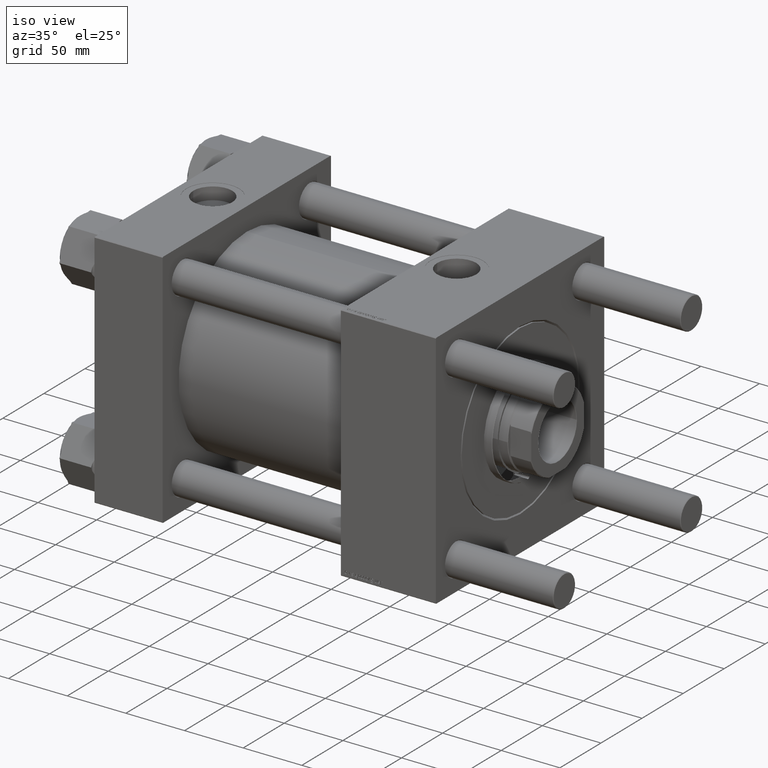
[diagram: clean part render]
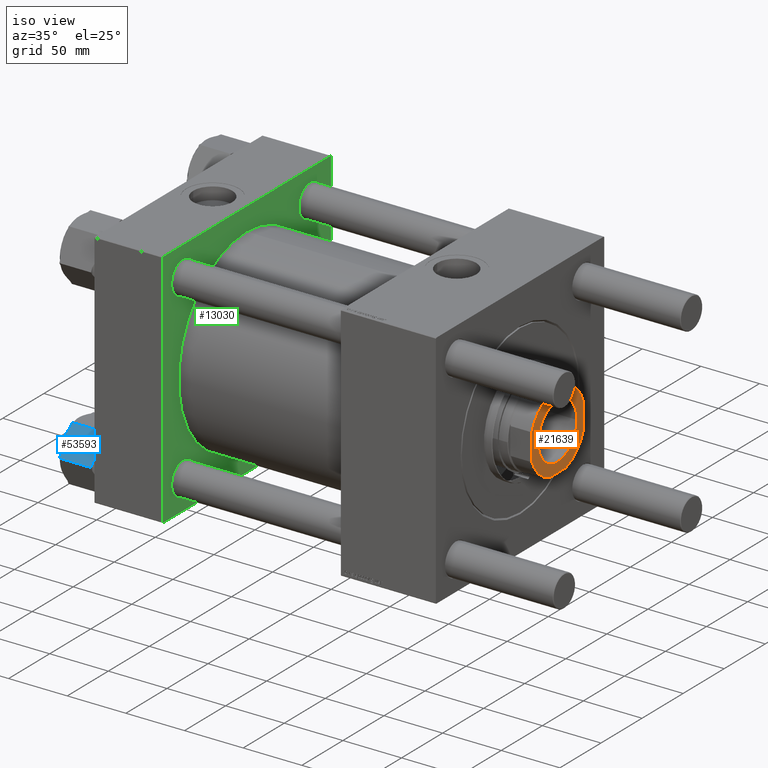
[diagram: same view with three faces highlighted in distinct colors, each labeled with its STEP entity id]
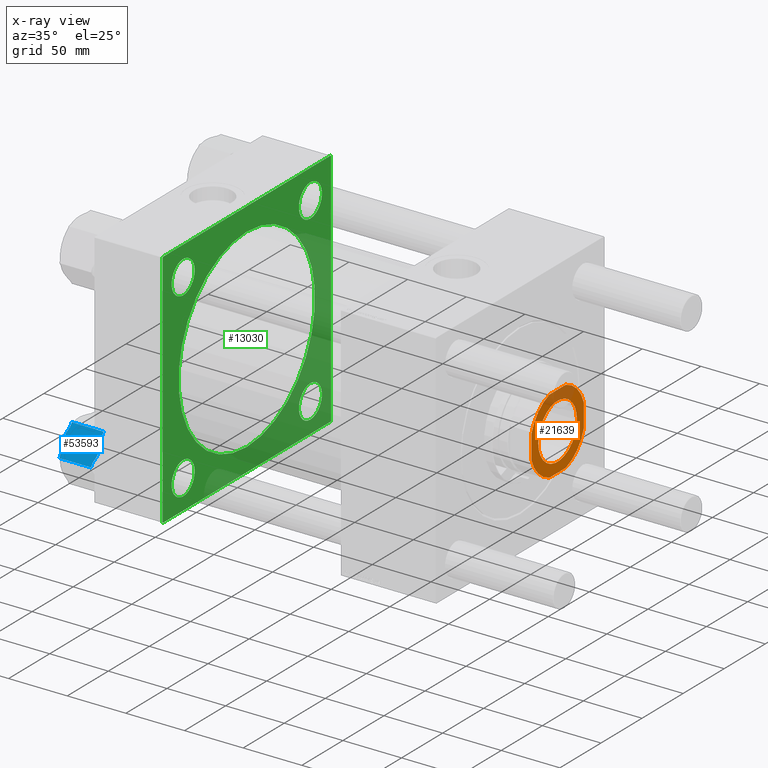
[diagram: x-ray of the same camera — body ghosted, the three highlighted faces saturated]
A machine part, iso view with three faces highlighted in distinct colors.
The next image is the same camera in x-ray (body ghosted, the three faces saturated) — at least one of them is partly hidden behind the body in this view.
Their STEP definitions:

[orange] entity #21639 — the highlighted planar face has unit normal (1, 0, 0).
#60 = DIRECTION ( 'NONE',  ( -1.000000000000000000, -0.000000000000000000, -0.000000000000000000 ) ) ;
#365 = LINE ( 'NONE', #13323, #33495 ) ;
#667 = DIRECTION ( 'NONE',  ( -0.000000000000000000, 0.000000000000000000, 1.000000000000000000 ) ) ;
#668 = VERTEX_POINT ( 'NONE', #10317 ) ;
#673 = CARTESIAN_POINT ( 'NONE',  ( 0.000000000000000000, 0.000000000000000000, 265.0000000000000000 ) ) ;
#688 = VERTEX_POINT ( 'NONE', #34352 ) ;
#937 = DIRECTION ( 'NONE',  ( 1.000000000000000000, 0.000000000000000000, 0.000000000000000000 ) ) ;
#938 = CIRCLE ( 'NONE', #40334, 33.49999999999997158 ) ;
#1055 = CARTESIAN_POINT ( 'NONE',  ( 31.99999999999999289, 32.00000000000000000, 265.0000000000000000 ) ) ;
#1433 = DIRECTION ( 'NONE',  ( 1.000000000000000000, 0.000000000000000000, 0.000000000000000000 ) ) ;
#1976 = CARTESIAN_POINT ( 'NONE',  ( 0.000000000000000000, 0.000000000000000000, 265.0000000000000000 ) ) ;
#1978 = CARTESIAN_POINT ( 'NONE',  ( -32.00000000000000711, 32.00000000000000000, 265.0000000000000000 ) ) ;
#2384 = EDGE_CURVE ( 'NONE', #688, #14448, #38380, .T. ) ;
#2634 = CIRCLE ( 'NONE', #36263, 33.50000000000008527 ) ;
#2781 = FACE_OUTER_BOUND ( 'NONE', #7747, .T. ) ;
#3864 = ORIENTED_EDGE ( 'NONE', *, *, #2384, .T. ) ;
#4901 = EDGE_CURVE ( 'NONE', #50405, #688, #52015, .T. ) ;
#5452 = CARTESIAN_POINT ( 'NONE',  ( 0.000000000000000000, 0.000000000000000000, 265.0000000000000000 ) ) ;
#5490 = DIRECTION ( 'NONE',  ( 0.000000000000000000, -0.000000000000000000, -1.000000000000000000 ) ) ;
#5880 = AXIS2_PLACEMENT_3D ( 'NONE', #5452, #50609, #937 ) ;
#7269 = ORIENTED_EDGE ( 'NONE', *, *, #42468, .T. ) ;
#7747 = EDGE_LOOP ( 'NONE', ( #29191, #48002, #12041, #45410, #35671, #51099, #38193, #3864 ) ) ;
#8188 = FACE_BOUND ( 'NONE', #38786, .T. ) ;
#8644 = VECTOR ( 'NONE', #1433, 1000.000000000000000 ) ;
#8973 = CARTESIAN_POINT ( 'NONE',  ( 9.912113800799794205, 32.00000000000000000, 265.0000000000000000 ) ) ;
#9100 = CARTESIAN_POINT ( 'NONE',  ( 0.000000000000000000, 0.000000000000000000, 265.0000000000000000 ) ) ;
#9318 = CARTESIAN_POINT ( 'NONE',  ( 32.00000000000000000, 9.912113800799794205, 265.0000000000000000 ) ) ;
#9699 = DIRECTION ( 'NONE',  ( -0.000000000000000000, 0.000000000000000000, 1.000000000000000000 ) ) ;
#10317 = CARTESIAN_POINT ( 'NONE',  ( -32.00000000000000711, 9.912113800799412289, 265.0000000000000000 ) ) ;
#11200 = VERTEX_POINT ( 'NONE', #49894 ) ;
#12041 = ORIENTED_EDGE ( 'NONE', *, *, #59278, .T. ) ;
#12116 = PLANE ( 'NONE',  #48603 ) ;
#12438 = AXIS2_PLACEMENT_3D ( 'NONE', #1976, #57100, #30856 ) ;
#13323 = CARTESIAN_POINT ( 'NONE',  ( -32.00000000000000711, 32.00000000000000000, 265.0000000000000000 ) ) ;
#14448 = VERTEX_POINT ( 'NONE', #57517 ) ;
#15122 = CARTESIAN_POINT ( 'NONE',  ( 0.000000000000000000, 0.000000000000000000, 265.0000000000000000 ) ) ;
#17739 = CARTESIAN_POINT ( 'NONE',  ( 23.55000000000004334, 0.000000000000000000, 265.0000000000000000 ) ) ;
#21639 = ADVANCED_FACE ( 'NONE', ( #8188, #2781 ), #12116, .T. ) ;
#22111 = CARTESIAN_POINT ( 'NONE',  ( 0.000000000000000000, 0.000000000000000000, 265.0000000000000000 ) ) ;
#22742 = AXIS2_PLACEMENT_3D ( 'NONE', #9100, #667, #55174 ) ;
#23173 = CARTESIAN_POINT ( 'NONE',  ( -32.00000000000000000, -9.912113800799444263, 265.0000000000000000 ) ) ;
#23916 = EDGE_CURVE ( 'NONE', #57620, #50405, #48681, .T. ) ;
#26682 = CARTESIAN_POINT ( 'NONE',  ( -9.912113800799440710, -32.00000000000000000, 265.0000000000000000 ) ) ;
#27908 = EDGE_CURVE ( 'NONE', #14448, #59618, #43207, .T. ) ;
#28690 = VERTEX_POINT ( 'NONE', #8973 ) ;
#29191 = ORIENTED_EDGE ( 'NONE', *, *, #27908, .T. ) ;
#30461 = CARTESIAN_POINT ( 'NONE',  ( 0.000000000000000000, 0.000000000000000000, 265.0000000000000000 ) ) ;
#30856 = DIRECTION ( 'NONE',  ( 1.000000000000000000, 0.000000000000000000, 0.000000000000000000 ) ) ;
#31823 = CIRCLE ( 'NONE', #5880, 23.55000000000004334 ) ;
#31954 = DIRECTION ( 'NONE',  ( 1.000000000000000000, 0.000000000000000000, 0.000000000000000000 ) ) ;
#32281 = VERTEX_POINT ( 'NONE', #41880 ) ;
#32990 = CIRCLE ( 'NONE', #40633, 23.55000000000004334 ) ;
#33495 = VECTOR ( 'NONE', #60, 1000.000000000000000 ) ;
#34352 = CARTESIAN_POINT ( 'NONE',  ( 9.912113800799188468, -32.00000000000000000, 265.0000000000000000 ) ) ;
#35671 = ORIENTED_EDGE ( 'NONE', *, *, #43333, .T. ) ;
#36263 = AXIS2_PLACEMENT_3D ( 'NONE', #22111, #49776, #53125 ) ;
#38193 = ORIENTED_EDGE ( 'NONE', *, *, #4901, .T. ) ;
#38268 = DIRECTION ( 'NONE',  ( 1.000000000000000000, 0.000000000000000000, 0.000000000000000000 ) ) ;
#38380 = CIRCLE ( 'NONE', #12438, 33.49999999999990763 ) ;
#38493 = EDGE_CURVE ( 'NONE', #11200, #668, #938, .T. ) ;
#38786 = EDGE_LOOP ( 'NONE', ( #48714, #7269 ) ) ;
#40334 = AXIS2_PLACEMENT_3D ( 'NONE', #15122, #9699, #38268 ) ;
#40633 = AXIS2_PLACEMENT_3D ( 'NONE', #673, #5490, #55179 ) ;
#41880 = CARTESIAN_POINT ( 'NONE',  ( -23.55000000000004334, 2.884043211992022126E-15, 265.0000000000000000 ) ) ;
#42468 = EDGE_CURVE ( 'NONE', #32281, #42780, #31823, .T. ) ;
#42780 = VERTEX_POINT ( 'NONE', #17739 ) ;
#43207 = LINE ( 'NONE', #1055, #54573 ) ;
#43333 = EDGE_CURVE ( 'NONE', #668, #57620, #52556, .T. ) ;
#45410 = ORIENTED_EDGE ( 'NONE', *, *, #38493, .T. ) ;
#46833 = EDGE_CURVE ( 'NONE', #42780, #32281, #32990, .T. ) ;
#47131 = DIRECTION ( 'NONE',  ( -1.084202172485504434E-16, 1.000000000000000000, -0.000000000000000000 ) ) ;
#47469 = DIRECTION ( 'NONE',  ( 1.084202172485504434E-16, -1.000000000000000000, 0.000000000000000000 ) ) ;
#48002 = ORIENTED_EDGE ( 'NONE', *, *, #55132, .T. ) ;
#48084 = CARTESIAN_POINT ( 'NONE',  ( -32.00000000000000000, -32.00000000000000000, 265.0000000000000000 ) ) ;
#48603 = AXIS2_PLACEMENT_3D ( 'NONE', #30461, #48836, #31954 ) ;
#48681 = CIRCLE ( 'NONE', #22742, 33.49999999999997868 ) ;
#48714 = ORIENTED_EDGE ( 'NONE', *, *, #46833, .T. ) ;
#48836 = DIRECTION ( 'NONE',  ( -0.000000000000000000, 0.000000000000000000, 1.000000000000000000 ) ) ;
#49198 = VECTOR ( 'NONE', #47469, 1000.000000000000000 ) ;
#49776 = DIRECTION ( 'NONE',  ( -0.000000000000000000, 0.000000000000000000, 1.000000000000000000 ) ) ;
#49894 = CARTESIAN_POINT ( 'NONE',  ( -9.912113800799417618, 32.00000000000000000, 265.0000000000000000 ) ) ;
#50405 = VERTEX_POINT ( 'NONE', #26682 ) ;
#50609 = DIRECTION ( 'NONE',  ( 0.000000000000000000, -0.000000000000000000, -1.000000000000000000 ) ) ;
#51099 = ORIENTED_EDGE ( 'NONE', *, *, #23916, .T. ) ;
#52015 = LINE ( 'NONE', #48084, #8644 ) ;
#52556 = LINE ( 'NONE', #1978, #49198 ) ;
#53125 = DIRECTION ( 'NONE',  ( 1.000000000000000000, 0.000000000000000000, 0.000000000000000000 ) ) ;
#54573 = VECTOR ( 'NONE', #47131, 1000.000000000000000 ) ;
#55132 = EDGE_CURVE ( 'NONE', #59618, #28690, #2634, .T. ) ;
#55174 = DIRECTION ( 'NONE',  ( 1.000000000000000000, 0.000000000000000000, 0.000000000000000000 ) ) ;
#55179 = DIRECTION ( 'NONE',  ( 1.000000000000000000, 0.000000000000000000, 0.000000000000000000 ) ) ;
#57100 = DIRECTION ( 'NONE',  ( -0.000000000000000000, 0.000000000000000000, 1.000000000000000000 ) ) ;
#57517 = CARTESIAN_POINT ( 'NONE',  ( 32.00000000000000000, -9.912113800799190244, 265.0000000000000000 ) ) ;
#57620 = VERTEX_POINT ( 'NONE', #23173 ) ;
#59278 = EDGE_CURVE ( 'NONE', #28690, #11200, #365, .T. ) ;
#59618 = VERTEX_POINT ( 'NONE', #9318 ) ;

[blue] entity #53593 — the highlighted planar face has unit normal (-0, 0.8198, -0.5726).
#664 = ORIENTED_EDGE ( 'NONE', *, *, #10286, .F. ) ;
#864 = VERTEX_POINT ( 'NONE', #54511 ) ;
#1501 = PLANE ( 'NONE',  #35197 ) ;
#1977 = LINE ( 'NONE', #47168, #44276 ) ;
#2026 = B_SPLINE_CURVE_WITH_KNOTS ( 'NONE', 3,
 ( #3800, #45342, #22176, #17648, #17924, #14012, #22470, #36271, #32073, #4380 ),
 .UNSPECIFIED., .F., .F.,
 ( 4, 2, 2, 2, 4 ),
 ( 5.412492187574943929E-07, 0.005006446827219880602, 0.007509399616220444398, 0.008760876010720725429, 0.01001235240522100299 ),
 .UNSPECIFIED. ) ;
#3515 = DIRECTION ( 'NONE',  ( -0.8660254037844387076, -0.4999999999999998890, 0.000000000000000000 ) ) ;
#3598 = DIRECTION ( 'NONE',  ( -0.4999999999999998890, 0.8660254037844387076, 0.000000000000000000 ) ) ;
#3800 = CARTESIAN_POINT ( 'NONE',  ( 15.06055342074747649, 20.02154878264366289, -28.99999999999999645 ) ) ;
#4299 = EDGE_CURVE ( 'NONE', #35423, #29242, #40893, .T. ) ;
#4380 = CARTESIAN_POINT ( 'NONE',  ( 19.96500000000001407, 11.52679812437088280, -31.00000000000000000 ) ) ;
#5048 = CARTESIAN_POINT ( 'NONE',  ( 24.86944657925254631, 3.032047466098112931, -2.000000000000000000 ) ) ;
#5401 = EDGE_CURVE ( 'NONE', #58382, #29242, #38007, .T. ) ;
#6645 = CARTESIAN_POINT ( 'NONE',  ( 21.64175213325209057, 8.622578237878782303, -30.81213813433825166 ) ) ;
#6816 = CARTESIAN_POINT ( 'NONE',  ( 15.06055342074748182, 20.02154878264365223, -2.000000000000000000 ) ) ;
#7536 = VECTOR ( 'NONE', #24238, 1000.000000000000114 ) ;
#9253 = CARTESIAN_POINT ( 'NONE',  ( 19.96500000000001762, 11.52679812437088458, 0.000000000000000000 ) ) ;
#9628 = VECTOR ( 'NONE', #15152, 1000.000000000000000 ) ;
#9862 = CARTESIAN_POINT ( 'NONE',  ( 21.64584558940375203, 8.615488163845540726, -0.2290702059543304192 ) ) ;
#10286 = EDGE_CURVE ( 'NONE', #56903, #23960, #1977, .T. ) ;
#11469 = CARTESIAN_POINT ( 'NONE',  ( 24.47560625466581996, 3.714198918351712564, -29.30838987161980924 ) ) ;
#11552 = ORIENTED_EDGE ( 'NONE', *, *, #40546, .F. ) ;
#11814 = CARTESIAN_POINT ( 'NONE',  ( 13.31000000000000227, 23.05359624874177271, -2.000000000000001776 ) ) ;
#11953 = EDGE_CURVE ( 'NONE', #25196, #23503, #2026, .T. ) ;
#12315 = VERTEX_POINT ( 'NONE', #48513 ) ;
#12354 = CARTESIAN_POINT ( 'NONE',  ( 20.81146273741196850, 10.06068165645954871, -31.00000000000001776 ) ) ;
#13548 = B_SPLINE_CURVE_WITH_KNOTS ( 'NONE', 3,
 ( #57841, #12354, #6645, #16872, #38845, #21393, #11469, #34614 ),
 .UNSPECIFIED., .F., .F.,
 ( 4, 2, 2, 4 ),
 ( 0.01001235240522100299, 0.01501505178013392595, 0.01751640146759038397, 0.02001775115504684371 ),
 .UNSPECIFIED. ) ;
#14012 = CARTESIAN_POINT ( 'NONE',  ( 18.90939003826338549, 13.35516821107454888, -30.90723860914736676 ) ) ;
#14272 = LINE ( 'NONE', #33526, #7536 ) ;
#14684 = CARTESIAN_POINT ( 'NONE',  ( 22.05804950302956513, 7.901530042366891493, -0.3633963927283470063 ) ) ;
#14749 = CARTESIAN_POINT ( 'NONE',  ( 19.96500000000001407, 11.52679812437088280, -31.00000000000000000 ) ) ;
#15152 = DIRECTION ( 'NONE',  ( -0.000000000000000000, -0.000000000000000000, 1.000000000000000000 ) ) ;
#16872 = CARTESIAN_POINT ( 'NONE',  ( 22.86684697778494524, 6.500651723057153220, -30.29409426249535997 ) ) ;
#17046 = CARTESIAN_POINT ( 'NONE',  ( 16.65815586667607562, 17.25442017599901590, -0.9177057102691500434 ) ) ;
#17617 = DIRECTION ( 'NONE',  ( 0.4999999999999998890, -0.8660254037844387076, 0.000000000000000000 ) ) ;
#17648 = CARTESIAN_POINT ( 'NONE',  ( 17.87195049697044880, 15.15206620637486346, -30.63660360727163479 ) ) ;
#17924 = CARTESIAN_POINT ( 'NONE',  ( 18.28415441059626900, 14.43810808489622133, -30.77092979404567430 ) ) ;
#18327 = VECTOR ( 'NONE', #38096, 1000.000000000000000 ) ;
#18412 = EDGE_CURVE ( 'NONE', #31177, #35423, #28840, .T. ) ;
#19427 = EDGE_CURVE ( 'NONE', #23960, #31177, #24498, .T. ) ;
#19765 = LINE ( 'NONE', #24597, #18327 ) ;
#19876 = CARTESIAN_POINT ( 'NONE',  ( 13.31000000000000405, 23.05359624874177271, -31.00000000000000000 ) ) ;
#20173 = VECTOR ( 'NONE', #3598, 1000.000000000000114 ) ;
#20673 = CARTESIAN_POINT ( 'NONE',  ( 19.11853726258806674, 12.99291459228221335, 1.998546004614949767E-14 ) ) ;
#21393 = CARTESIAN_POINT ( 'NONE',  ( 24.07590164194817461, 4.406507615598330929, -29.58973526236487217 ) ) ;
#21571 = CARTESIAN_POINT ( 'NONE',  ( 19.96500000000001762, 11.52679812437088458, 0.000000000000000000 ) ) ;
#22176 = CARTESIAN_POINT ( 'NONE',  ( 16.64769565855988276, 17.27253778791399341, -30.11739750492499113 ) ) ;
#22470 = CARTESIAN_POINT ( 'NONE',  ( 19.11895617587300933, 12.99218901318873343, -30.94181803359235161 ) ) ;
#22724 = CARTESIAN_POINT ( 'NONE',  ( 13.31000000000000405, 23.05359624874177271, -28.99999999999999645 ) ) ;
#22764 = DIRECTION ( 'NONE',  ( 0.4999999999999998890, -0.8660254037844387076, 0.000000000000000000 ) ) ;
#22821 = CARTESIAN_POINT ( 'NONE',  ( 21.02060996173663909, 9.698428037667214952, -0.09276139085263580830 ) ) ;
#23503 = VERTEX_POINT ( 'NONE', #14749 ) ;
#23960 = VERTEX_POINT ( 'NONE', #28077 ) ;
#24238 = DIRECTION ( 'NONE',  ( 0.4999999999999998890, -0.8660254037844387076, 0.000000000000000000 ) ) ;
#24498 = B_SPLINE_CURVE_WITH_KNOTS ( 'NONE', 3,
 ( #5048, #33043, #27928, #14684, #9862, #22821, #50501, #31842, #46294, #9253 ),
 .UNSPECIFIED., .F., .F.,
 ( 4, 2, 2, 2, 4 ),
 ( 5.412492187791932595E-07, 0.005006446827219891010, 0.007509399616220448735, 0.008760876010720730633, 0.01001235240522101166 ),
 .UNSPECIFIED. ) ;
#24597 = CARTESIAN_POINT ( 'NONE',  ( 26.62000000000001165, -3.114209406997181913E-15, -31.00000000000000000 ) ) ;
#24598 = CARTESIAN_POINT ( 'NONE',  ( 15.06055342074747649, 20.02154878264366289, -28.99999999999999645 ) ) ;
#25196 = VERTEX_POINT ( 'NONE', #24598 ) ;
#27928 = CARTESIAN_POINT ( 'NONE',  ( 23.28230434144013472, 5.781058460827768641, -0.8826024950749986608 ) ) ;
#28077 = CARTESIAN_POINT ( 'NONE',  ( 24.86944657925254631, 3.032047466098112931, -2.000000000000000000 ) ) ;
#28840 = B_SPLINE_CURVE_WITH_KNOTS ( 'NONE', 3,
 ( #21571, #20673, #56304, #43563, #17046, #43842, #33387, #6816 ),
 .UNSPECIFIED., .F., .F.,
 ( 4, 2, 2, 4 ),
 ( 0.01001235240522101166, 0.01501505178013393116, 0.01751640146759038744, 0.02001775115504684371 ),
 .UNSPECIFIED. ) ;
#29242 = VERTEX_POINT ( 'NONE', #11814 ) ;
#30682 = CARTESIAN_POINT ( 'NONE',  ( 13.31000000000000405, 23.05359624874177271, -2.000000000000001776 ) ) ;
#31177 = VERTEX_POINT ( 'NONE', #33199 ) ;
#31842 = CARTESIAN_POINT ( 'NONE',  ( 20.38949137558737590, 10.79155749447877533, -0.01178697739765701032 ) ) ;
#32073 = CARTESIAN_POINT ( 'NONE',  ( 19.75324869229453384, 11.89356214788590016, -31.00000000000001066 ) ) ;
#33043 = CARTESIAN_POINT ( 'NONE',  ( 24.08202856253745239, 4.395895477843764887, -1.383425906575932673 ) ) ;
#33199 = CARTESIAN_POINT ( 'NONE',  ( 19.96500000000001762, 11.52679812437088458, 0.000000000000000000 ) ) ;
#33387 = CARTESIAN_POINT ( 'NONE',  ( 15.45439374533419397, 19.33939733039004238, -1.691610128380184097 ) ) ;
#33526 = CARTESIAN_POINT ( 'NONE',  ( 13.31000000000000405, 23.05359624874177271, -28.99999999999999645 ) ) ;
#33899 = DIRECTION ( 'NONE',  ( -0.4999999999999998890, 0.8660254037844387076, 0.000000000000000000 ) ) ;
#34614 = CARTESIAN_POINT ( 'NONE',  ( 24.86944657925255342, 3.032047466098104049, -28.99999999999999645 ) ) ;
#34615 = EDGE_CURVE ( 'NONE', #864, #12315, #14272, .T. ) ;
#35143 = EDGE_CURVE ( 'NONE', #23503, #864, #13548, .T. ) ;
#35197 = AXIS2_PLACEMENT_3D ( 'NONE', #19876, #3515, #22764 ) ;
#35423 = VERTEX_POINT ( 'NONE', #43891 ) ;
#35687 = ORIENTED_EDGE ( 'NONE', *, *, #5401, .T. ) ;
#36110 = EDGE_LOOP ( 'NONE', ( #56059, #35687, #42561, #54803, #49395, #664, #11552, #58213, #37683, #43505 ) ) ;
#36271 = CARTESIAN_POINT ( 'NONE',  ( 19.54050862441264513, 12.26203875426298673, -30.98821302260232358 ) ) ;
#37683 = ORIENTED_EDGE ( 'NONE', *, *, #35143, .F. ) ;
#38007 = LINE ( 'NONE', #56408, #9628 ) ;
#38096 = DIRECTION ( 'NONE',  ( -0.000000000000000000, -0.000000000000000000, 1.000000000000000000 ) ) ;
#38625 = CARTESIAN_POINT ( 'NONE',  ( 26.62000000000001165, -3.114209406997181913E-15, -2.000000000000001776 ) ) ;
#38845 = CARTESIAN_POINT ( 'NONE',  ( 23.27184413332395252, 5.799176072742743493, -30.08229428973083941 ) ) ;
#40546 = EDGE_CURVE ( 'NONE', #12315, #56903, #19765, .T. ) ;
#40893 = LINE ( 'NONE', #30682, #20173 ) ;
#41370 = LINE ( 'NONE', #22724, #43097 ) ;
#42561 = ORIENTED_EDGE ( 'NONE', *, *, #4299, .F. ) ;
#42758 = FACE_OUTER_BOUND ( 'NONE', #36110, .T. ) ;
#43097 = VECTOR ( 'NONE', #17617, 1000.000000000000114 ) ;
#43505 = ORIENTED_EDGE ( 'NONE', *, *, #11953, .F. ) ;
#43563 = CARTESIAN_POINT ( 'NONE',  ( 17.06315302221506869, 16.55294452568460173, -0.7059057375046257077 ) ) ;
#43842 = CARTESIAN_POINT ( 'NONE',  ( 15.85409835805184997, 18.64708863314342580, -1.410264737635122945 ) ) ;
#43891 = CARTESIAN_POINT ( 'NONE',  ( 15.06055342074748182, 20.02154878264365223, -2.000000000000000000 ) ) ;
#44276 = VECTOR ( 'NONE', #33899, 1000.000000000000114 ) ;
#45342 = CARTESIAN_POINT ( 'NONE',  ( 15.84797143746256154, 18.65770077089800338, -29.61657409342407021 ) ) ;
#46294 = CARTESIAN_POINT ( 'NONE',  ( 20.17675130770548719, 11.16003410085586367, 2.008296294985563166E-14 ) ) ;
#47168 = CARTESIAN_POINT ( 'NONE',  ( 13.31000000000000405, 23.05359624874177271, -2.000000000000001776 ) ) ;
#48513 = CARTESIAN_POINT ( 'NONE',  ( 26.62000000000001165, -3.114209406997181913E-15, -28.99999999999999645 ) ) ;
#49395 = ORIENTED_EDGE ( 'NONE', *, *, #19427, .F. ) ;
#50501 = CARTESIAN_POINT ( 'NONE',  ( 20.81104382412701881, 10.06140723555303751, -0.05818196640765729843 ) ) ;
#53593 = ADVANCED_FACE ( 'NONE', ( #42758 ), #1501, .F. ) ;
#54511 = CARTESIAN_POINT ( 'NONE',  ( 24.86944657925255342, 3.032047466098104049, -28.99999999999999645 ) ) ;
#54803 = ORIENTED_EDGE ( 'NONE', *, *, #18412, .F. ) ;
#56059 = ORIENTED_EDGE ( 'NONE', *, *, #58166, .F. ) ;
#56304 = CARTESIAN_POINT ( 'NONE',  ( 18.28824786674793046, 14.43101801086297620, -0.1878618656617424831 ) ) ;
#56408 = CARTESIAN_POINT ( 'NONE',  ( 13.31000000000000405, 23.05359624874177271, -31.00000000000000000 ) ) ;
#56738 = CARTESIAN_POINT ( 'NONE',  ( 13.31000000000000227, 23.05359624874177271, -28.99999999999999645 ) ) ;
#56903 = VERTEX_POINT ( 'NONE', #38625 ) ;
#57841 = CARTESIAN_POINT ( 'NONE',  ( 19.96500000000001407, 11.52679812437088280, -31.00000000000000000 ) ) ;
#58166 = EDGE_CURVE ( 'NONE', #58382, #25196, #41370, .T. ) ;
#58213 = ORIENTED_EDGE ( 'NONE', *, *, #34615, .F. ) ;
#58382 = VERTEX_POINT ( 'NONE', #56738 ) ;

[green] entity #13030 — the highlighted planar face has unit normal (-1, 0, 0).
#206 = CARTESIAN_POINT ( 'NONE',  ( 58.00000000000000000, -102.4999999999999716, 102.5000000000000000 ) ) ;
#403 = FACE_BOUND ( 'NONE', #45821, .T. ) ;
#1172 = VERTEX_POINT ( 'NONE', #26169 ) ;
#1436 = CARTESIAN_POINT ( 'NONE',  ( 58.00000000000000000, -102.4999999999999716, 102.0000000000000000 ) ) ;
#1542 = CARTESIAN_POINT ( 'NONE',  ( 58.00000000000000000, 77.44999999999998863, -91.44999999999991758 ) ) ;
#1610 = DIRECTION ( 'NONE',  ( 0.000000000000000000, 0.000000000000000000, 1.000000000000000000 ) ) ;
#1621 = ORIENTED_EDGE ( 'NONE', *, *, #55725, .F. ) ;
#3953 = AXIS2_PLACEMENT_3D ( 'NONE', #45579, #14252, #22701 ) ;
#4048 = AXIS2_PLACEMENT_3D ( 'NONE', #26890, #12154, #45257 ) ;
#4283 = ORIENTED_EDGE ( 'NONE', *, *, #55756, .T. ) ;
#4355 = EDGE_CURVE ( 'NONE', #25212, #14282, #46822, .T. ) ;
#4501 = CIRCLE ( 'NONE', #30448, 13.99999999999990052 ) ;
#4772 = DIRECTION ( 'NONE',  ( 0.000000000000000000, 0.000000000000000000, 1.000000000000000000 ) ) ;
#5223 = PLANE ( 'NONE',  #3953 ) ;
#5346 = CARTESIAN_POINT ( 'NONE',  ( 58.00000000000000000, -77.44999999999996021, -77.45000000000003126 ) ) ;
#5939 = AXIS2_PLACEMENT_3D ( 'NONE', #17999, #41789, #8979 ) ;
#6471 = LINE ( 'NONE', #11593, #11509 ) ;
#6473 = VECTOR ( 'NONE', #32679, 1000.000000000000000 ) ;
#6815 = VERTEX_POINT ( 'NONE', #16816 ) ;
#8526 = EDGE_CURVE ( 'NONE', #35086, #23126, #31889, .T. ) ;
#8979 = DIRECTION ( 'NONE',  ( 0.000000000000000000, 0.000000000000000000, 1.000000000000000000 ) ) ;
#9164 = ORIENTED_EDGE ( 'NONE', *, *, #17618, .T. ) ;
#9177 = ORIENTED_EDGE ( 'NONE', *, *, #25517, .T. ) ;
#9586 = CARTESIAN_POINT ( 'NONE',  ( 58.00000000000000000, -77.44999999999996021, 77.45000000000003126 ) ) ;
#10563 = DIRECTION ( 'NONE',  ( 1.000000000000000000, -0.000000000000000000, -0.000000000000000000 ) ) ;
#11509 = VECTOR ( 'NONE', #29358, 1000.000000000000114 ) ;
#11593 = CARTESIAN_POINT ( 'NONE',  ( 58.00000000000000000, 102.5000000000000284, -101.9999999999999716 ) ) ;
#12017 = CARTESIAN_POINT ( 'NONE',  ( 58.00000000000000000, -77.44999999999996021, -63.45000000000013074 ) ) ;
#12154 = DIRECTION ( 'NONE',  ( -1.000000000000000000, 0.000000000000000000, 0.000000000000000000 ) ) ;
#12683 = VERTEX_POINT ( 'NONE', #12017 ) ;
#12829 = CARTESIAN_POINT ( 'NONE',  ( 58.00000000000000000, -77.44999999999996021, -77.45000000000003126 ) ) ;
#12923 = EDGE_CURVE ( 'NONE', #55852, #14282, #35038, .T. ) ;
#13030 = ADVANCED_FACE ( 'NONE', ( #45286, #27204, #41342, #403, #13663, #23309 ), #5223, .F. ) ;
#13212 = CARTESIAN_POINT ( 'NONE',  ( 58.00000000000000000, -77.44999999999996021, -91.44999999999993179 ) ) ;
#13663 = FACE_BOUND ( 'NONE', #55538, .T. ) ;
#13689 = EDGE_CURVE ( 'NONE', #28518, #29728, #45714, .T. ) ;
#14252 = DIRECTION ( 'NONE',  ( -1.000000000000000000, 0.000000000000000000, 0.000000000000000000 ) ) ;
#14282 = VERTEX_POINT ( 'NONE', #26642 ) ;
#14349 = AXIS2_PLACEMENT_3D ( 'NONE', #20351, #43808, #16724 ) ;
#14469 = AXIS2_PLACEMENT_3D ( 'NONE', #46993, #10563, #38224 ) ;
#14866 = EDGE_CURVE ( 'NONE', #23502, #26270, #29994, .T. ) ;
#15042 = CARTESIAN_POINT ( 'NONE',  ( 58.00000000000000000, -77.44999999999996021, 63.45000000000013074 ) ) ;
#15285 = DIRECTION ( 'NONE',  ( 0.000000000000000000, 0.000000000000000000, 1.000000000000000000 ) ) ;
#15521 = ORIENTED_EDGE ( 'NONE', *, *, #12923, .F. ) ;
#15533 = CARTESIAN_POINT ( 'NONE',  ( 58.00000000000000000, 102.0000000000000142, 102.5000000000000284 ) ) ;
#16364 = VERTEX_POINT ( 'NONE', #1436 ) ;
#16594 = CIRCLE ( 'NONE', #31969, 13.99999999999990052 ) ;
#16724 = DIRECTION ( 'NONE',  ( 0.000000000000000000, 0.000000000000000000, 1.000000000000000000 ) ) ;
#16816 = CARTESIAN_POINT ( 'NONE',  ( 58.00000000000000000, 102.5000000000000284, -101.9999999999999147 ) ) ;
#17035 = VERTEX_POINT ( 'NONE', #13212 ) ;
#17618 = EDGE_CURVE ( 'NONE', #12683, #17035, #16594, .T. ) ;
#17699 = VERTEX_POINT ( 'NONE', #40193 ) ;
#17999 = CARTESIAN_POINT ( 'NONE',  ( 58.00000000000000000, 77.44999999999998863, -77.45000000000001705 ) ) ;
#18898 = VECTOR ( 'NONE', #36017, 1000.000000000000000 ) ;
#18936 = CIRCLE ( 'NONE', #52584, 13.99999999999990052 ) ;
#18976 = CARTESIAN_POINT ( 'NONE',  ( 58.00000000000000000, -102.4999999999999716, 102.0000000000000000 ) ) ;
#19815 = CARTESIAN_POINT ( 'NONE',  ( 58.00000000000000000, -101.9999999999999147, 102.5000000000000000 ) ) ;
#20351 = CARTESIAN_POINT ( 'NONE',  ( 58.00000000000000000, 77.44999999999998863, 77.45000000000001705 ) ) ;
#20359 = CARTESIAN_POINT ( 'NONE',  ( 58.00000000000000000, 77.44999999999998863, -77.45000000000001705 ) ) ;
#22380 = ORIENTED_EDGE ( 'NONE', *, *, #50221, .T. ) ;
#22450 = DIRECTION ( 'NONE',  ( 0.000000000000000000, 0.000000000000000000, 1.000000000000000000 ) ) ;
#22516 = VERTEX_POINT ( 'NONE', #47902 ) ;
#22701 = DIRECTION ( 'NONE',  ( 0.000000000000000000, 0.000000000000000000, 1.000000000000000000 ) ) ;
#23126 = VERTEX_POINT ( 'NONE', #59108 ) ;
#23309 = FACE_OUTER_BOUND ( 'NONE', #43237, .T. ) ;
#23411 = LINE ( 'NONE', #206, #18898 ) ;
#23502 = VERTEX_POINT ( 'NONE', #15042 ) ;
#23735 = DIRECTION ( 'NONE',  ( -1.000000000000000000, 0.000000000000000000, 0.000000000000000000 ) ) ;
#23956 = ORIENTED_EDGE ( 'NONE', *, *, #33572, .T. ) ;
#24054 = ORIENTED_EDGE ( 'NONE', *, *, #4355, .T. ) ;
#24262 = ORIENTED_EDGE ( 'NONE', *, *, #53443, .T. ) ;
#24397 = EDGE_CURVE ( 'NONE', #17699, #51176, #56410, .T. ) ;
#24876 = CARTESIAN_POINT ( 'NONE',  ( 58.00000000000000000, 102.0000000000000142, -102.4999999999999716 ) ) ;
#25152 = CARTESIAN_POINT ( 'NONE',  ( 58.00000000000000000, -101.9999999999999432, -102.5000000000000000 ) ) ;
#25212 = VERTEX_POINT ( 'NONE', #42939 ) ;
#25259 = EDGE_CURVE ( 'NONE', #23126, #35086, #29468, .T. ) ;
#25270 = CIRCLE ( 'NONE', #26245, 13.99999999999990052 ) ;
#25517 = EDGE_CURVE ( 'NONE', #49054, #22516, #4501, .T. ) ;
#26047 = CARTESIAN_POINT ( 'NONE',  ( 58.00000000000000000, 102.5000000000000284, -102.4999999999999716 ) ) ;
#26169 = CARTESIAN_POINT ( 'NONE',  ( 58.00000000000000000, 102.5000000000000284, 102.0000000000000142 ) ) ;
#26245 = AXIS2_PLACEMENT_3D ( 'NONE', #5346, #23735, #15285 ) ;
#26262 = EDGE_CURVE ( 'NONE', #16364, #25212, #23411, .T. ) ;
#26270 = VERTEX_POINT ( 'NONE', #36309 ) ;
#26642 = CARTESIAN_POINT ( 'NONE',  ( 58.00000000000000000, -101.9999999999999432, -102.5000000000000000 ) ) ;
#26890 = CARTESIAN_POINT ( 'NONE',  ( 58.00000000000000000, -77.44999999999996021, 77.45000000000003126 ) ) ;
#27204 = FACE_BOUND ( 'NONE', #52688, .T. ) ;
#28518 = VERTEX_POINT ( 'NONE', #47857 ) ;
#28574 = ORIENTED_EDGE ( 'NONE', *, *, #25259, .T. ) ;
#29358 = DIRECTION ( 'NONE',  ( -0.000000000000000000, 0.7071067811865474617, 0.7071067811865474617 ) ) ;
#29468 = CIRCLE ( 'NONE', #57389, 13.99999999999990052 ) ;
#29545 = ORIENTED_EDGE ( 'NONE', *, *, #8526, .T. ) ;
#29728 = VERTEX_POINT ( 'NONE', #19815 ) ;
#29994 = CIRCLE ( 'NONE', #4048, 13.99999999999990052 ) ;
#30448 = AXIS2_PLACEMENT_3D ( 'NONE', #57030, #38324, #1610 ) ;
#31889 = CIRCLE ( 'NONE', #5939, 13.99999999999990052 ) ;
#31969 = AXIS2_PLACEMENT_3D ( 'NONE', #12829, #58597, #22450 ) ;
#32617 = ORIENTED_EDGE ( 'NONE', *, *, #24397, .F. ) ;
#32679 = DIRECTION ( 'NONE',  ( 0.000000000000000000, 0.000000000000000000, -1.000000000000000000 ) ) ;
#33572 = EDGE_CURVE ( 'NONE', #22516, #49054, #51878, .T. ) ;
#34151 = DIRECTION ( 'NONE',  ( 0.000000000000000000, 0.7071067811865474617, -0.7071067811865474617 ) ) ;
#35038 = LINE ( 'NONE', #26047, #44363 ) ;
#35086 = VERTEX_POINT ( 'NONE', #1542 ) ;
#35480 = CARTESIAN_POINT ( 'NONE',  ( 58.00000000000000000, 77.44999999999998863, 63.45000000000011653 ) ) ;
#35523 = VECTOR ( 'NONE', #34151, 1000.000000000000114 ) ;
#36017 = DIRECTION ( 'NONE',  ( 0.000000000000000000, -1.353930517835556973E-16, -1.000000000000000000 ) ) ;
#36309 = CARTESIAN_POINT ( 'NONE',  ( 58.00000000000000000, -77.44999999999996021, 91.44999999999993179 ) ) ;
#37169 = CARTESIAN_POINT ( 'NONE',  ( 58.00000000000000000, 102.5000000000000284, 102.5000000000000284 ) ) ;
#37480 = CARTESIAN_POINT ( 'NONE',  ( 57.99999999999999289, 7.562483218957820855E-15, -83.00000000000000000 ) ) ;
#37557 = DIRECTION ( 'NONE',  ( -1.000000000000000000, 0.000000000000000000, 0.000000000000000000 ) ) ;
#38224 = DIRECTION ( 'NONE',  ( 0.000000000000000000, 0.000000000000000000, 1.000000000000000000 ) ) ;
#38324 = DIRECTION ( 'NONE',  ( -1.000000000000000000, 0.000000000000000000, 0.000000000000000000 ) ) ;
#38694 = DIRECTION ( 'NONE',  ( -1.000000000000000000, 0.000000000000000000, 0.000000000000000000 ) ) ;
#38941 = EDGE_CURVE ( 'NONE', #55852, #6815, #6471, .T. ) ;
#38979 = ORIENTED_EDGE ( 'NONE', *, *, #14866, .T. ) ;
#39584 = DIRECTION ( 'NONE',  ( 0.000000000000000000, 0.000000000000000000, 1.000000000000000000 ) ) ;
#40047 = EDGE_LOOP ( 'NONE', ( #38979, #56418 ) ) ;
#40193 = CARTESIAN_POINT ( 'NONE',  ( 57.99999999999999289, -2.602085213965210642E-15, 83.00000000000000000 ) ) ;
#40414 = CIRCLE ( 'NONE', #14469, 83.00000000000000000 ) ;
#41342 = FACE_BOUND ( 'NONE', #40047, .T. ) ;
#41527 = EDGE_CURVE ( 'NONE', #51176, #17699, #40414, .T. ) ;
#41553 = DIRECTION ( 'NONE',  ( -0.000000000000000000, -0.7071067811865474617, -0.7071067811865474617 ) ) ;
#41789 = DIRECTION ( 'NONE',  ( -1.000000000000000000, 0.000000000000000000, 0.000000000000000000 ) ) ;
#42729 = ORIENTED_EDGE ( 'NONE', *, *, #13689, .T. ) ;
#42939 = CARTESIAN_POINT ( 'NONE',  ( 58.00000000000000000, -102.5000000000000000, -101.9999999999998863 ) ) ;
#42967 = ORIENTED_EDGE ( 'NONE', *, *, #26262, .T. ) ;
#43237 = EDGE_LOOP ( 'NONE', ( #15521, #49653, #1621, #4283, #42729, #24262, #42967, #24054 ) ) ;
#43808 = DIRECTION ( 'NONE',  ( -1.000000000000000000, 0.000000000000000000, 0.000000000000000000 ) ) ;
#44363 = VECTOR ( 'NONE', #47794, 1000.000000000000000 ) ;
#44806 = DIRECTION ( 'NONE',  ( 0.000000000000000000, 0.000000000000000000, 1.000000000000000000 ) ) ;
#44849 = VECTOR ( 'NONE', #41553, 1000.000000000000114 ) ;
#45257 = DIRECTION ( 'NONE',  ( 0.000000000000000000, 0.000000000000000000, 1.000000000000000000 ) ) ;
#45286 = FACE_BOUND ( 'NONE', #54571, .T. ) ;
#45579 = CARTESIAN_POINT ( 'NONE',  ( 58.00000000000000000, 0.000000000000000000, 0.000000000000000000 ) ) ;
#45714 = LINE ( 'NONE', #50232, #49171 ) ;
#45821 = EDGE_LOOP ( 'NONE', ( #9177, #23956 ) ) ;
#46069 = LINE ( 'NONE', #18976, #44849 ) ;
#46822 = LINE ( 'NONE', #25152, #35523 ) ;
#46993 = CARTESIAN_POINT ( 'NONE',  ( 57.99999999999999289, -2.602085213965210642E-15, 0.000000000000000000 ) ) ;
#47794 = DIRECTION ( 'NONE',  ( 0.000000000000000000, -1.000000000000000000, -1.353930517835556727E-16 ) ) ;
#47857 = CARTESIAN_POINT ( 'NONE',  ( 58.00000000000000000, 102.0000000000000142, 102.5000000000000284 ) ) ;
#47902 = CARTESIAN_POINT ( 'NONE',  ( 58.00000000000000000, 77.44999999999998863, 91.44999999999991758 ) ) ;
#49054 = VERTEX_POINT ( 'NONE', #35480 ) ;
#49171 = VECTOR ( 'NONE', #49637, 1000.000000000000000 ) ;
#49324 = CARTESIAN_POINT ( 'NONE',  ( 57.99999999999999289, -2.602085213965210642E-15, 0.000000000000000000 ) ) ;
#49637 = DIRECTION ( 'NONE',  ( 0.000000000000000000, -1.000000000000000000, -1.353930517835556973E-16 ) ) ;
#49653 = ORIENTED_EDGE ( 'NONE', *, *, #38941, .T. ) ;
#50221 = EDGE_CURVE ( 'NONE', #17035, #12683, #25270, .T. ) ;
#50232 = CARTESIAN_POINT ( 'NONE',  ( 58.00000000000000000, 102.5000000000000284, 102.5000000000000284 ) ) ;
#51049 = LINE ( 'NONE', #15533, #55511 ) ;
#51176 = VERTEX_POINT ( 'NONE', #37480 ) ;
#51878 = CIRCLE ( 'NONE', #14349, 13.99999999999990052 ) ;
#52584 = AXIS2_PLACEMENT_3D ( 'NONE', #9586, #37557, #4772 ) ;
#52688 = EDGE_LOOP ( 'NONE', ( #29545, #28574 ) ) ;
#53093 = ORIENTED_EDGE ( 'NONE', *, *, #41527, .F. ) ;
#53246 = DIRECTION ( 'NONE',  ( 1.000000000000000000, -0.000000000000000000, -0.000000000000000000 ) ) ;
#53443 = EDGE_CURVE ( 'NONE', #29728, #16364, #46069, .T. ) ;
#54571 = EDGE_LOOP ( 'NONE', ( #22380, #9164 ) ) ;
#54607 = EDGE_CURVE ( 'NONE', #26270, #23502, #18936, .T. ) ;
#55271 = LINE ( 'NONE', #37169, #6473 ) ;
#55511 = VECTOR ( 'NONE', #57365, 1000.000000000000114 ) ;
#55538 = EDGE_LOOP ( 'NONE', ( #32617, #53093 ) ) ;
#55725 = EDGE_CURVE ( 'NONE', #1172, #6815, #55271, .T. ) ;
#55756 = EDGE_CURVE ( 'NONE', #1172, #28518, #51049, .T. ) ;
#55852 = VERTEX_POINT ( 'NONE', #24876 ) ;
#56410 = CIRCLE ( 'NONE', #59263, 83.00000000000000000 ) ;
#56418 = ORIENTED_EDGE ( 'NONE', *, *, #54607, .T. ) ;
#57030 = CARTESIAN_POINT ( 'NONE',  ( 58.00000000000000000, 77.44999999999998863, 77.45000000000001705 ) ) ;
#57365 = DIRECTION ( 'NONE',  ( 0.000000000000000000, -0.7071067811865474617, 0.7071067811865474617 ) ) ;
#57389 = AXIS2_PLACEMENT_3D ( 'NONE', #20359, #38694, #39584 ) ;
#58597 = DIRECTION ( 'NONE',  ( -1.000000000000000000, 0.000000000000000000, 0.000000000000000000 ) ) ;
#59108 = CARTESIAN_POINT ( 'NONE',  ( 58.00000000000000000, 77.44999999999998863, -63.45000000000011653 ) ) ;
#59263 = AXIS2_PLACEMENT_3D ( 'NONE', #49324, #53246, #44806 ) ;